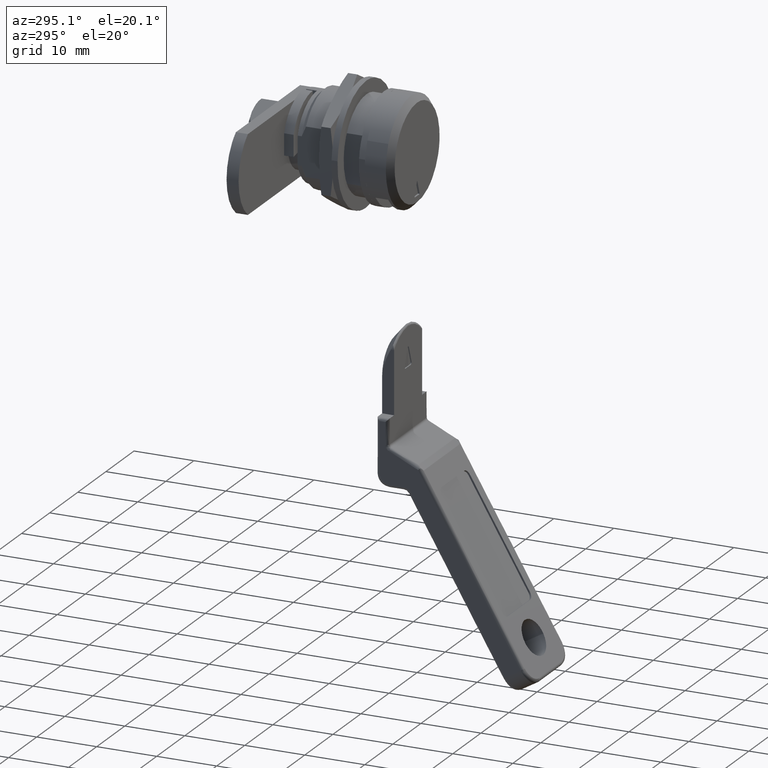
[diagram: clean part render]
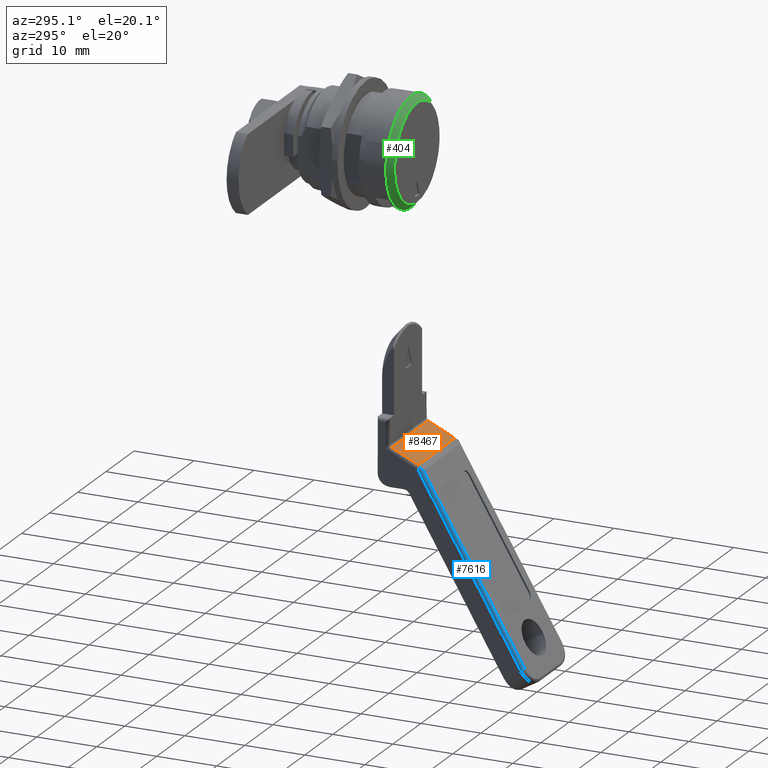
[diagram: same view with three faces highlighted in distinct colors, each labeled with its STEP entity id]
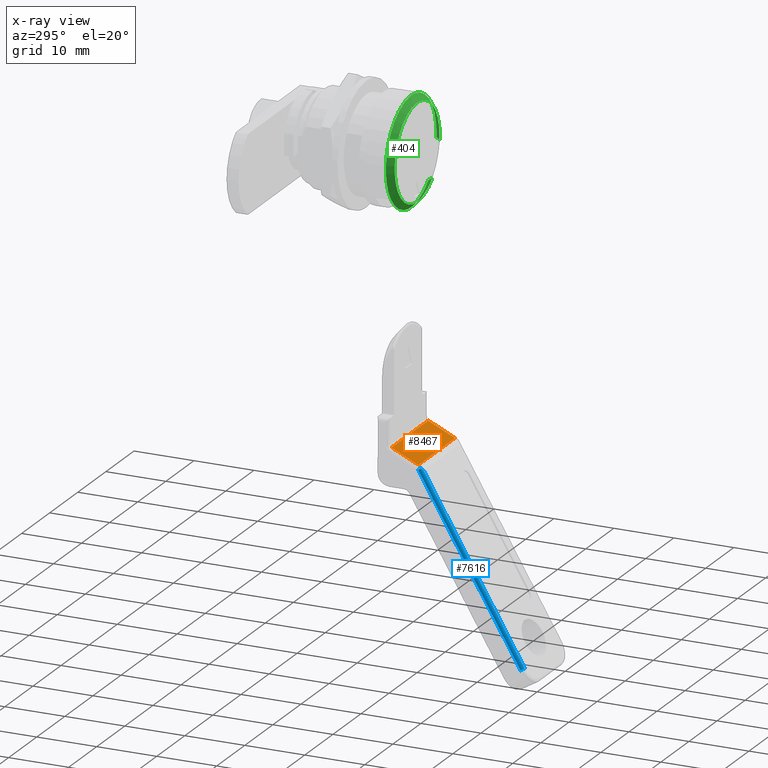
[diagram: x-ray of the same camera — body ghosted, the three highlighted faces saturated]
A machine part, auxiliary view with three faces highlighted in distinct colors.
The next image is the same camera in x-ray (body ghosted, the three faces saturated) — at least one of them is partly hidden behind the body in this view.
Their STEP definitions:

[orange] entity #8467 — the highlighted face is a freeform B-spline surface patch.
#6145=CARTESIAN_POINT('',(1.206650374696130,6.500016000000000,-75.486390659266107));
#6146=VERTEX_POINT('',#6145);
#6196=CARTESIAN_POINT('',(-3.253744957814065,6.500016000000000,-77.586650513976110));
#6197=VERTEX_POINT('',#6196);
#6219=CARTESIAN_POINT('',(1.206650374696130,6.500016000000000,-75.486390659266107));
#6220=CARTESIAN_POINT('',(-3.253744957814065,6.500016000000000,-77.586650513976110));
#6221=QUASI_UNIFORM_CURVE('',1,(#6219,#6220),.UNSPECIFIED.,.F.,.U.);
#6222=EDGE_CURVE('',#6146,#6197,#6221,.T.);
#6415=CARTESIAN_POINT('',(1.206650374696130,-6.499992000000070,-75.486390659266107));
#6416=VERTEX_POINT('',#6415);
#6442=CARTESIAN_POINT('',(-3.253744957814065,-6.499992000000000,-77.586650513976110));
#6443=VERTEX_POINT('',#6442);
#6444=CARTESIAN_POINT('',(-3.253744957814065,-6.499992000000000,-77.586650513976110));
#6445=CARTESIAN_POINT('',(1.206650374696130,-6.499992000000070,-75.486390659266107));
#6446=QUASI_UNIFORM_CURVE('',1,(#6444,#6445),.UNSPECIFIED.,.F.,.U.);
#6447=EDGE_CURVE('',#6443,#6416,#6446,.T.);
#8435=CARTESIAN_POINT('',(-3.253744957814065,-6.499992000000000,-77.586650513976110));
#8436=CARTESIAN_POINT('',(-3.253744957814065,6.500016000000000,-77.586650513976110));
#8437=QUASI_UNIFORM_CURVE('',1,(#8435,#8436),.UNSPECIFIED.,.F.,.U.);
#8438=EDGE_CURVE('',#6443,#6197,#8437,.T.);
#8452=CARTESIAN_POINT('',(1.429447661296578,-7.149342252368761,-75.381482425376021));
#8453=CARTESIAN_POINT('',(-3.476540170704347,-7.149342252368761,-77.691557771421287));
#8454=CARTESIAN_POINT('',(1.429447661296578,7.149366717285206,-75.381482425376021));
#8455=CARTESIAN_POINT('',(-3.476540170704347,7.149366717285206,-77.691557771421287));
#8456=B_SPLINE_SURFACE_WITH_KNOTS('',1,1,((#8452,#8454),(#8453,#8455)),.UNSPECIFIED.,.F.,.F.,.U.,(2,2),(2,2),(0.0,5.422652921969771),(0.0,14.298708969653971),.UNSPECIFIED.);
#8457=CARTESIAN_POINT('',(1.206650374696130,-6.499992000000070,-75.486390659266107));
#8458=CARTESIAN_POINT('',(1.206650374696130,6.500016000000000,-75.486390659266107));
#8459=QUASI_UNIFORM_CURVE('',1,(#8457,#8458),.UNSPECIFIED.,.F.,.U.);
#8460=EDGE_CURVE('',#6416,#6146,#8459,.T.);
#8461=ORIENTED_EDGE('',*,*,#8460,.T.);
#8462=ORIENTED_EDGE('',*,*,#6222,.T.);
#8463=ORIENTED_EDGE('',*,*,#8438,.F.);
#8464=ORIENTED_EDGE('',*,*,#6447,.T.);
#8465=EDGE_LOOP('',(#8461,#8462,#8463,#8464));
#8466=FACE_OUTER_BOUND('',#8465,.T.);
#8467=ADVANCED_FACE('',(#8466),#8456,.F.);

[blue] entity #7616 — the highlighted face is a freeform B-spline surface patch.
#6174=CARTESIAN_POINT('',(-3.454696070230035,7.000016000000001,-78.233928652503906));
#6175=VERTEX_POINT('',#6174);
#6181=CARTESIAN_POINT('',(-3.744549760696360,6.788210077782040,-77.918793916743496));
#6182=VERTEX_POINT('',#6181);
#6183=CARTESIAN_POINT('',(-3.744549760696360,6.788210077782040,-77.918793916743496));
#6184=CARTESIAN_POINT('',(-3.638568100378482,7.000016000000000,-78.034019299817885));
#6185=CARTESIAN_POINT('',(-3.454696070230035,7.000016000000000,-78.233928652503906));
#6193=(BOUNDED_CURVE()B_SPLINE_CURVE(2,(#6183,#6184,#6185),.UNSPECIFIED.,.F.,.U.)CURVE()GEOMETRIC_REPRESENTATION_ITEM()QUASI_UNIFORM_CURVE()RATIONAL_B_SPLINE_CURVE((1.0,0.887802949861083,1.0))REPRESENTATION_ITEM(''));
#6194=EDGE_CURVE('',#6182,#6175,#6193,.T.);
#7516=CARTESIAN_POINT('',(-20.964109334668301,6.500016000000000,-107.561123632889410));
#7517=VERTEX_POINT('',#7516);
#7518=CARTESIAN_POINT('',(-20.531096626935000,7.000016000000001,-107.811123622774600));
#7519=VERTEX_POINT('',#7518);
#7520=CARTESIAN_POINT('',(-20.964109334668311,6.500016000000000,-107.561123632889410));
#7521=CARTESIAN_POINT('',(-20.964109334668315,6.707122781186875,-107.561123632889430));
#7522=CARTESIAN_POINT('',(-20.837282848913109,6.853569390593669,-107.634346934630300));
#7523=CARTESIAN_POINT('',(-20.710456363157906,7.000016000000463,-107.707570236371080));
#7524=CARTESIAN_POINT('',(-20.531096626934978,7.000016000000000,-107.811123622774600));
#7532=(BOUNDED_CURVE()B_SPLINE_CURVE(2,(#7520,#7521,#7522,#7523,#7524),.UNSPECIFIED.,.F.,.U.)B_SPLINE_CURVE_WITH_KNOTS((3,2,3),(0.0,0.500000000000000,1.0),.UNSPECIFIED.)CURVE()GEOMETRIC_REPRESENTATION_ITEM()RATIONAL_B_SPLINE_CURVE((1.0,0.923879532511073,1.0,0.923879532511073,1.0))REPRESENTATION_ITEM(''));
#7533=EDGE_CURVE('',#7517,#7519,#7532,.T.);
#7565=CARTESIAN_POINT('',(-21.392470814019671,6.486927525846062,-108.303410194196900));
#7566=CARTESIAN_POINT('',(-3.384343863822559,6.486927525846062,-77.112417684584315));
#7567=CARTESIAN_POINT('',(-21.404840742696511,7.032394794297064,-108.296268412930710));
#7568=CARTESIAN_POINT('',(-3.396713792499399,7.032394794297058,-77.105275903318173));
#7569=CARTESIAN_POINT('',(-20.933171695520411,6.999083399210939,-108.568586649595010));
#7570=CARTESIAN_POINT('',(-2.925044745323307,6.999083399210939,-77.377594139982406));
#7578=(BOUNDED_SURFACE()B_SPLINE_SURFACE(1,2,((#7565,#7567,#7569),(#7566,#7568,#7570)),.UNSPECIFIED.,.F.,.F.,.U.)B_SPLINE_SURFACE_WITH_KNOTS((2,2),(3,3),(0.0,36.016255357673181),(0.0,1.0),.UNSPECIFIED.)GEOMETRIC_REPRESENTATION_ITEM()RATIONAL_B_SPLINE_SURFACE(((1.0,0.675590207615660,1.0),(1.0,0.675590207615660,1.0)))REPRESENTATION_ITEM('')SURFACE());
#7579=CARTESIAN_POINT('',(-4.117352339479215,6.500016000000000,-78.381683000255904));
#7580=VERTEX_POINT('',#7579);
#7581=CARTESIAN_POINT('',(-3.744549760696354,6.788210077781966,-77.918793916743454));
#7582=CARTESIAN_POINT('',(-3.819395090016021,6.745114828850105,-77.987636101871729));
#7583=CARTESIAN_POINT('',(-3.888034194217053,6.698644657410500,-78.061283575029790));
#7584=CARTESIAN_POINT('',(-3.981627489761643,6.626674607488768,-78.177909618375892));
#7585=CARTESIAN_POINT('',(-4.011249854592318,6.602313636781302,-78.217796557096747));
#7586=CARTESIAN_POINT('',(-4.053324853725629,6.565433760384887,-78.279067679537178));
#7587=CARTESIAN_POINT('',(-4.066957948658761,6.553090260993258,-78.299734474925799));
#7588=CARTESIAN_POINT('',(-4.086793312188110,6.534451055889815,-78.331049674537056));
#7589=CARTESIAN_POINT('',(-4.093305127771541,6.528226611902361,-78.341544746953957));
#7590=CARTESIAN_POINT('',(-4.102888417933817,6.518744130514932,-78.357312450015186));
#7591=CARTESIAN_POINT('',(-4.106055337100029,6.515569791107507,-78.362578094234394));
#7592=CARTESIAN_POINT('',(-4.110715498828342,6.510611007924439,-78.370406719195145));
#7593=CARTESIAN_POINT('',(-4.112257533987193,6.508934831950099,-78.373010951322286));
#7594=CARTESIAN_POINT('',(-4.114491847374013,6.506191862733610,-78.376803095365730));
#7595=CARTESIAN_POINT('',(-4.115228030919577,6.505243454615543,-78.378055881121085));
#7596=CARTESIAN_POINT('',(-4.116585536094346,6.503069816682077,-78.380371146975307));
#7597=CARTESIAN_POINT('',(-4.117352339478799,6.501769669942617,-78.381683000255180));
#7598=CARTESIAN_POINT('',(-4.117352339479215,6.500016000000000,-78.381683000255904));
#7599=B_SPLINE_CURVE_WITH_KNOTS('',3,(#7581,#7582,#7583,#7584,#7585,#7586,#7587,#7588,#7589,#7590,#7591,#7592,#7593,#7594,#7595,#7596,#7597,#7598),.UNSPECIFIED.,.F.,.U.,(4,2,2,2,2,2,2,2,4),(0.0,0.500000000000024,0.750000000000036,0.875000000000018,0.937500000000009,0.968750000000004,0.984375000000002,0.992187500000001,1.0),.UNSPECIFIED.);
#7600=EDGE_CURVE('',#6182,#7580,#7599,.T.);
#7601=ORIENTED_EDGE('',*,*,#7600,.F.);
#7602=ORIENTED_EDGE('',*,*,#6194,.T.);
#7603=CARTESIAN_POINT('',(-20.531096626935000,7.000016000000001,-107.811123622774600));
#7604=CARTESIAN_POINT('',(-3.454696070230035,7.000016000000001,-78.233928652503906));
#7605=QUASI_UNIFORM_CURVE('',1,(#7603,#7604),.UNSPECIFIED.,.F.,.U.);
#7606=EDGE_CURVE('',#7519,#6175,#7605,.T.);
#7607=ORIENTED_EDGE('',*,*,#7606,.F.);
#7608=ORIENTED_EDGE('',*,*,#7533,.F.);
#7609=CARTESIAN_POINT('',(-4.117352339479215,6.500016000000000,-78.381683000255904));
#7610=CARTESIAN_POINT('',(-20.964109334668301,6.500016000000000,-107.561123632889410));
#7611=QUASI_UNIFORM_CURVE('',1,(#7609,#7610),.UNSPECIFIED.,.F.,.U.);
#7612=EDGE_CURVE('',#7580,#7517,#7611,.T.);
#7613=ORIENTED_EDGE('',*,*,#7612,.F.);
#7614=EDGE_LOOP('',(#7601,#7602,#7607,#7608,#7613));
#7615=FACE_OUTER_BOUND('',#7614,.T.);
#7616=ADVANCED_FACE('',(#7615),#7578,.T.);

[green] entity #404 — the highlighted face is a freeform B-spline surface patch.
#234=CARTESIAN_POINT('',(-0.025000000000000,-5.377401338385872,-5.889327622566582));
#235=CARTESIAN_POINT('',(-0.025000000000000,-2.822852738952054,-8.221823611570606));
#236=CARTESIAN_POINT('',(-0.025000000000000,0.625711288429568,-7.950415736521690));
#237=CARTESIAN_POINT('',(-0.025000000000000,8.576127024951258,-7.324704448092123));
#238=CARTESIAN_POINT('',(-0.025000000000000,7.950415736521690,0.625711288429568));
#239=CARTESIAN_POINT('',(-0.025000000000000,7.324704448092123,8.576127024951258));
#240=CARTESIAN_POINT('',(-0.025000000000000,-0.625711288429568,7.950415736521690));
#241=CARTESIAN_POINT('',(-0.025000000000000,-8.576127024951258,7.324704448092123));
#242=CARTESIAN_POINT('',(-0.025000000000000,-7.950415736521690,-0.625711288429568));
#243=CARTESIAN_POINT('',(1.025625000000015,-6.085819179281478,-6.665186535853091));
#244=CARTESIAN_POINT('',(1.025625000000015,-3.194734827837563,-9.304965107734569));
#245=CARTESIAN_POINT('',(1.025625000000015,0.708142375878647,-8.997802010275207));
#246=CARTESIAN_POINT('',(1.025625000000015,9.705944386153854,-8.289659634396559));
#247=CARTESIAN_POINT('',(1.025625000000015,8.997802010275207,0.708142375878647));
#248=CARTESIAN_POINT('',(1.025625000000015,8.289659634396559,9.705944386153854));
#249=CARTESIAN_POINT('',(1.025625000000015,-0.708142375878647,8.997802010275207));
#250=CARTESIAN_POINT('',(1.025625000000015,-9.705944386153854,8.289659634396559));
#251=CARTESIAN_POINT('',(1.025625000000015,-8.997802010275207,-0.708142375878647));
#259=(BOUNDED_SURFACE()B_SPLINE_SURFACE(2,1,((#234,#243),(#235,#244),(#236,#245),(#237,#246),(#238,#247),(#239,#248),(#240,#249),(#241,#250),(#242,#251)),.UNSPECIFIED.,.F.,.F.,.U.)B_SPLINE_SURFACE_WITH_KNOTS((3,2,2,2,3),(2,2),(0.0,7.776155470498951,22.730300606073850,37.684445741648759,52.638590877223663),(0.0,1.0),.UNSPECIFIED.)GEOMETRIC_REPRESENTATION_ITEM()RATIONAL_B_SPLINE_SURFACE(((0.853787705168325,0.853787705168325),(0.847695526217005,0.847695526217005),(1.0,1.0),(0.707106781186548,0.707106781186548),(1.0,1.0),(0.707106781186548,0.707106781186548),(1.0,1.0),(0.707106781186548,0.707106781186548),(1.0,1.0)))REPRESENTATION_ITEM('')SURFACE());
#260=CARTESIAN_POINT('',(1.000000000000014,0.0,-9.000000000000140));
#261=VERTEX_POINT('',#260);
#262=CARTESIAN_POINT('',(1.000000000000048,-6.068540695359783,-6.646263147721834));
#263=VERTEX_POINT('',#262);
#264=CARTESIAN_POINT('',(1.000000000000014,0.0,-9.000000000000140));
#265=CARTESIAN_POINT('',(1.000000000000014,-3.490729111648780,-9.000000000000139));
#266=CARTESIAN_POINT('',(1.000000000000048,-6.068540695359784,-6.646263147721834));
#274=(BOUNDED_CURVE()B_SPLINE_CURVE(2,(#264,#265,#266),.UNSPECIFIED.,.F.,.U.)B_SPLINE_CURVE_WITH_KNOTS((3,3),(0.500000000000000,0.618147622109133),.UNSPECIFIED.)CURVE()GEOMETRIC_REPRESENTATION_ITEM()RATIONAL_B_SPLINE_CURVE((1.0,0.861581450661203,0.853993481003802))REPRESENTATION_ITEM(''));
#275=EDGE_CURVE('',#261,#263,#274,.T.);
#276=ORIENTED_EDGE('',*,*,#275,.T.);
#277=CARTESIAN_POINT('',(4.765093E-013,-5.394258395905734,-5.907789464614332));
#278=VERTEX_POINT('',#277);
#279=CARTESIAN_POINT('',(4.765093E-013,-5.394258395905734,-5.907789464614332));
#280=CARTESIAN_POINT('',(1.000000000000048,-6.068540695359783,-6.646263147721834));
#281=QUASI_UNIFORM_CURVE('',1,(#279,#280),.UNSPECIFIED.,.F.,.U.);
#282=EDGE_CURVE('',#278,#263,#281,.T.);
#283=ORIENTED_EDGE('',*,*,#282,.F.);
#284=CARTESIAN_POINT('',(0.0,0.0,-8.0));
#285=VERTEX_POINT('',#284);
#286=CARTESIAN_POINT('',(0.0,0.0,-8.0));
#287=CARTESIAN_POINT('',(0.0,-3.102870321512507,-8.0));
#288=CARTESIAN_POINT('',(4.765093E-013,-5.394258395905734,-5.907789464614332));
#296=(BOUNDED_CURVE()B_SPLINE_CURVE(2,(#286,#287,#288),.UNSPECIFIED.,.F.,.U.)B_SPLINE_CURVE_WITH_KNOTS((3,3),(0.500000000000000,0.618147622110674),.UNSPECIFIED.)CURVE()GEOMETRIC_REPRESENTATION_ITEM()RATIONAL_B_SPLINE_CURVE((1.0,0.861581450659398,0.853993481003604))REPRESENTATION_ITEM(''));
#297=EDGE_CURVE('',#285,#278,#296,.T.);
#298=ORIENTED_EDGE('',*,*,#297,.F.);
#299=CARTESIAN_POINT('',(0.0,0.0,8.0));
#300=VERTEX_POINT('',#299);
#301=CARTESIAN_POINT('',(0.0,0.0,8.0));
#302=CARTESIAN_POINT('',(0.0,8.0,8.0));
#303=CARTESIAN_POINT('',(0.0,8.0,0.0));
#304=CARTESIAN_POINT('',(0.0,8.0,-8.0));
#305=CARTESIAN_POINT('',(0.0,0.0,-8.0));
#313=(BOUNDED_CURVE()B_SPLINE_CURVE(2,(#301,#302,#303,#304,#305),.UNSPECIFIED.,.F.,.U.)B_SPLINE_CURVE_WITH_KNOTS((3,2,3),(0.0,0.250000000000000,0.500000000000000),.UNSPECIFIED.)CURVE()GEOMETRIC_REPRESENTATION_ITEM()RATIONAL_B_SPLINE_CURVE((1.0,0.707106781186548,1.0,0.707106781186548,1.0))REPRESENTATION_ITEM(''));
#314=EDGE_CURVE('',#300,#285,#313,.T.);
#315=ORIENTED_EDGE('',*,*,#314,.F.);
#316=CARTESIAN_POINT('',(9.533691E-011,-7.975338669902918,-0.627672766556384));
#317=VERTEX_POINT('',#316);
#318=CARTESIAN_POINT('',(9.533691E-011,-7.975338669902918,-0.627672766556384));
#319=CARTESIAN_POINT('',(0.0,-8.0,-0.314320856790869));
#320=CARTESIAN_POINT('',(0.0,-8.0,0.0));
#321=CARTESIAN_POINT('',(0.0,-8.0,8.0));
#322=CARTESIAN_POINT('',(0.0,0.0,8.0));
#330=(BOUNDED_CURVE()B_SPLINE_CURVE(2,(#318,#319,#320,#321,#322),.UNSPECIFIED.,.F.,.U.)B_SPLINE_CURVE_WITH_KNOTS((3,2,3),(0.736331300601551,0.750000000000000,1.0),.UNSPECIFIED.)CURVE()GEOMETRIC_REPRESENTATION_ITEM()RATIONAL_B_SPLINE_CURVE((0.969723356106670,0.983986122544779,1.0,0.707106781186548,1.0))REPRESENTATION_ITEM(''));
#331=EDGE_CURVE('',#317,#300,#330,.T.);
#332=ORIENTED_EDGE('',*,*,#331,.F.);
#333=CARTESIAN_POINT('',(1.000000000036794,-8.972256003613033,-0.706131861832059));
#334=VERTEX_POINT('',#333);
#335=CARTESIAN_POINT('',(9.533691E-011,-7.975338669902918,-0.627672766556384));
#336=CARTESIAN_POINT('',(1.000000000036794,-8.972256003613033,-0.706131861832059));
#337=QUASI_UNIFORM_CURVE('',1,(#335,#336),.UNSPECIFIED.,.F.,.U.);
#338=EDGE_CURVE('',#317,#334,#337,.T.);
#339=ORIENTED_EDGE('',*,*,#338,.T.);
#340=CARTESIAN_POINT('',(1.000000000000014,-4.786619686287713,7.621566241832110));
#341=VERTEX_POINT('',#340);
#342=CARTESIAN_POINT('',(1.000000000036794,-8.972256003613033,-0.706131861832059));
#343=CARTESIAN_POINT('',(1.000000000000014,-9.000000000000140,-0.353610963348880));
#344=CARTESIAN_POINT('',(1.000000000000014,-9.000000000000140,0.0));
#345=CARTESIAN_POINT('',(1.000000000000014,-9.000000000000140,4.975410777797244));
#346=CARTESIAN_POINT('',(1.000000000000014,-4.786619686287712,7.621566241832110));
#354=(BOUNDED_CURVE()B_SPLINE_CURVE(2,(#342,#343,#344,#345,#346),.UNSPECIFIED.,.F.,.U.)B_SPLINE_CURVE_WITH_KNOTS((3,2,3),(0.736331300622123,0.750000000000000,0.909035531802834),.UNSPECIFIED.)CURVE()GEOMETRIC_REPRESENTATION_ITEM()RATIONAL_B_SPLINE_CURVE((0.969723356149602,0.983986122568880,1.0,0.813678284738236,0.864410754061038))REPRESENTATION_ITEM(''));
#355=EDGE_CURVE('',#334,#341,#354,.T.);
#356=ORIENTED_EDGE('',*,*,#355,.T.);
#357=CARTESIAN_POINT('',(1.000000000000014,0.0,9.000000000000140));
#358=VERTEX_POINT('',#357);
#359=CARTESIAN_POINT('',(1.000000000000014,-4.786619686287712,7.621566241832110));
#360=CARTESIAN_POINT('',(1.000000000000014,-2.591788075193547,9.000000000000140));
#361=CARTESIAN_POINT('',(1.000000000000014,0.0,9.000000000000140));
#369=(BOUNDED_CURVE()B_SPLINE_CURVE(2,(#359,#360,#361),.UNSPECIFIED.,.F.,.U.)B_SPLINE_CURVE_WITH_KNOTS((3,3),(0.909035531802834,1.0),.UNSPECIFIED.)CURVE()GEOMETRIC_REPRESENTATION_ITEM()RATIONAL_B_SPLINE_CURVE((0.864410754061038,0.893428496448312,1.0))REPRESENTATION_ITEM(''));
#370=EDGE_CURVE('',#341,#358,#369,.T.);
#371=ORIENTED_EDGE('',*,*,#370,.T.);
#372=CARTESIAN_POINT('',(1.000000000000014,8.123268012007820,3.874598921835899));
#373=VERTEX_POINT('',#372);
#374=CARTESIAN_POINT('',(1.000000000000014,0.0,9.000000000000140));
#375=CARTESIAN_POINT('',(1.000000000000014,5.678577837797667,9.000000000000140));
#376=CARTESIAN_POINT('',(1.000000000000014,8.123268012007820,3.874598921835899));
#384=(BOUNDED_CURVE()B_SPLINE_CURVE(2,(#374,#375,#376),.UNSPECIFIED.,.F.,.U.)B_SPLINE_CURVE_WITH_KNOTS((3,3),(0.0,0.176854738293280),.UNSPECIFIED.)CURVE()GEOMETRIC_REPRESENTATION_ITEM()RATIONAL_B_SPLINE_CURVE((1.0,0.792801785755482,0.878755459151358))REPRESENTATION_ITEM(''));
#385=EDGE_CURVE('',#358,#373,#384,.T.);
#386=ORIENTED_EDGE('',*,*,#385,.T.);
#387=CARTESIAN_POINT('',(1.000000000000014,8.123268012007820,3.874598921835899));
#388=CARTESIAN_POINT('',(1.000000000000014,9.000000000000140,2.036491531410340));
#389=CARTESIAN_POINT('',(1.000000000000014,9.000000000000140,0.0));
#390=CARTESIAN_POINT('',(1.000000000000014,9.000000000000140,-9.000000000000140));
#391=CARTESIAN_POINT('',(1.000000000000014,0.0,-9.000000000000140));
#399=(BOUNDED_CURVE()B_SPLINE_CURVE(2,(#387,#388,#389,#390,#391),.UNSPECIFIED.,.F.,.U.)B_SPLINE_CURVE_WITH_KNOTS((3,2,3),(0.176854738293280,0.250000000000000,0.500000000000000),.UNSPECIFIED.)CURVE()GEOMETRIC_REPRESENTATION_ITEM()RATIONAL_B_SPLINE_CURVE((0.878755459151358,0.914304995431066,1.0,0.707106781186548,1.0))REPRESENTATION_ITEM(''));
#400=EDGE_CURVE('',#373,#261,#399,.T.);
#401=ORIENTED_EDGE('',*,*,#400,.T.);
#402=EDGE_LOOP('',(#276,#283,#298,#315,#332,#339,#356,#371,#386,#401));
#403=FACE_OUTER_BOUND('',#402,.T.);
#404=ADVANCED_FACE('',(#403),#259,.T.);